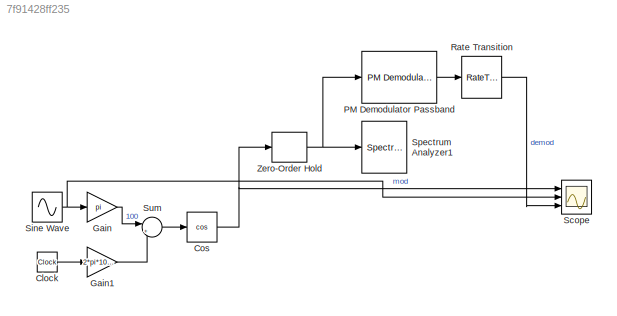
MODEL slx_7f91428ff235
KIND model
CONFIG AbsTol = auto
CONFIG EnableMultiTasking = off
CONFIG FixedStep = auto
CONFIG MaxStep = 0.00001
CONFIG MinStep = auto
CONFIG RelTol = 1e-3
CONFIG SampleTimeConstraint = Unconstrained
CONFIG SolverName = VariableStepAuto
CONFIG StartTime = 0.0
CONFIG StopTime = 10
BLOCK [Clock] Clock
  DisplayTime = on
BLOCK [Trigonometry] Cos
  Operator = cos
  Ports = [1, 1]
BLOCK [Gain] Gain
  Gain = pi
BLOCK [Gain] Gain1
  Gain = 2*pi*1000
BLOCK [Reference] PM Demodulator Passband  REF=commanapbnd3/PM
Demodulator
Passband
  Ports = [1, 1]
  SourceBlock = commanapbnd3/PM\nDemodulator\nPassband
  SourceProductBaseCode = CM
  SourceType = PM Demodulator Passband
BLOCK [RateTransition] Rate Transition
BLOCK [Scope] Scope
  Floating = off
  NumInputPorts = 3
  Ports = [3]
  ScopeSpecificationString = Simulink.scopes.TimeScopeBlockCfg('CurrentConfiguration', extmgr.ConfigurationSet(extmgr.Configuration('Core','General UI',true),extmgr.Configuration('Core','Source UI',true),extmgr.Configuration('Sources','WiredSimulink',true),extmgr.Configuration('Visuals','Time Domain',true,'SerializedDisplays',{struct('MinYLimReal','-1.24972','MaxYLimReal','1.24997','YLabelReal','','MinYLimMag','0.00000','MaxY...<+2791ch>
BLOCK [Sin] Sine Wave
  Frequency = 100 * 2 * pi
  Ports = [0, 1]
  SampleTime = 0
BLOCK [SpectrumAnalyzer] Spectrum Analyzer1
  Ports = [1]
  ScopeSpecificationString = spbscopes.SpectrumAnalyzerBlockCfg('CurrentConfiguration', extmgr.ConfigurationSet(extmgr.Configuration('Core','General UI',true),extmgr.Configuration('Core','Source UI',true),extmgr.Configuration('Sources','WiredSimulink',true),extmgr.Configuration('Visuals','Spectrum',true,'AxesProperties',struct('Color',{[0 0 0],[0 0 0]},'XColor',{[0.686274509803922 0.686274509803922 0.686274509803922],[0.68627...<+2098ch>
BLOCK [Sum] Sum
  Inputs = |++
  Ports = [2, 1]
BLOCK [ZeroOrderHold] Zero-Order Hold
  SampleTime = 1e-4
LINE Clock:1 -> Gain1:1
NET Cos:1 -> Scope:1, Zero-Order Hold:1
LINE Gain1:1 -> Sum:2
LINE Gain:1 -> Sum:1
LINE PM Demodulator Passband:1 -> Rate Transition:1
LINE Rate Transition:1 -> Scope:3
NET Sine Wave:1 -> Gain:1, Scope:2
LINE Sum:1 -> Cos:1
NET Zero-Order Hold:1 -> PM Demodulator Passband:1, Spectrum Analyzer1:1
note: NET lines group one-source signal fan-out (src -> all destinations, sorted); 1:1 wires keep LINE
